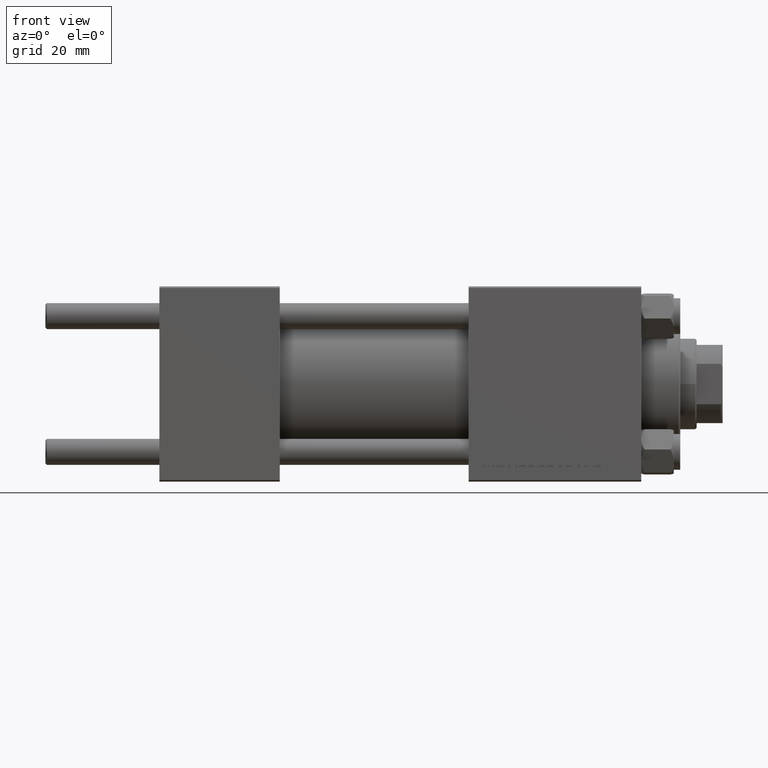
[diagram: clean part render]
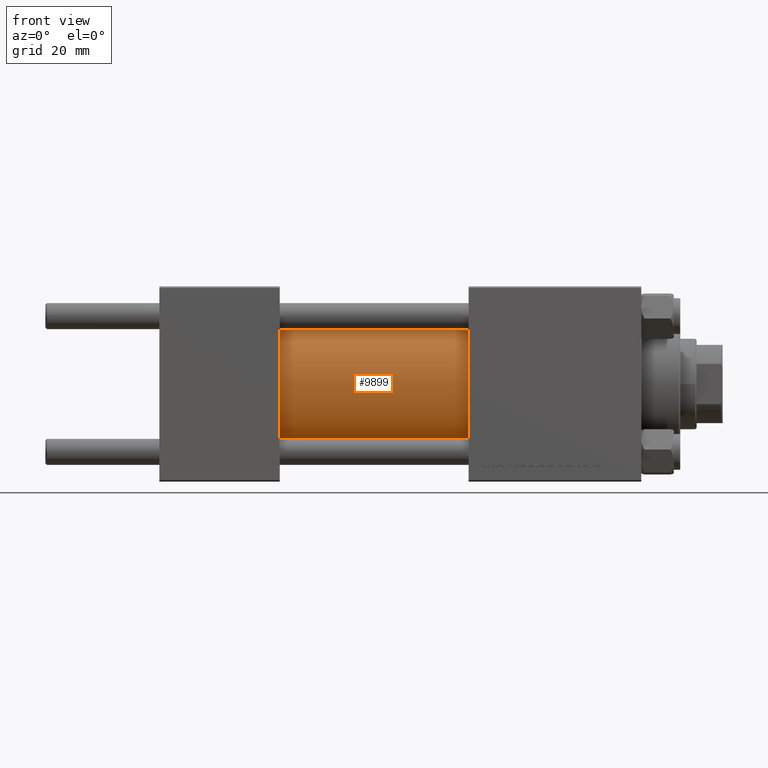
[diagram: same view with one face highlighted and labeled with its STEP entity id]
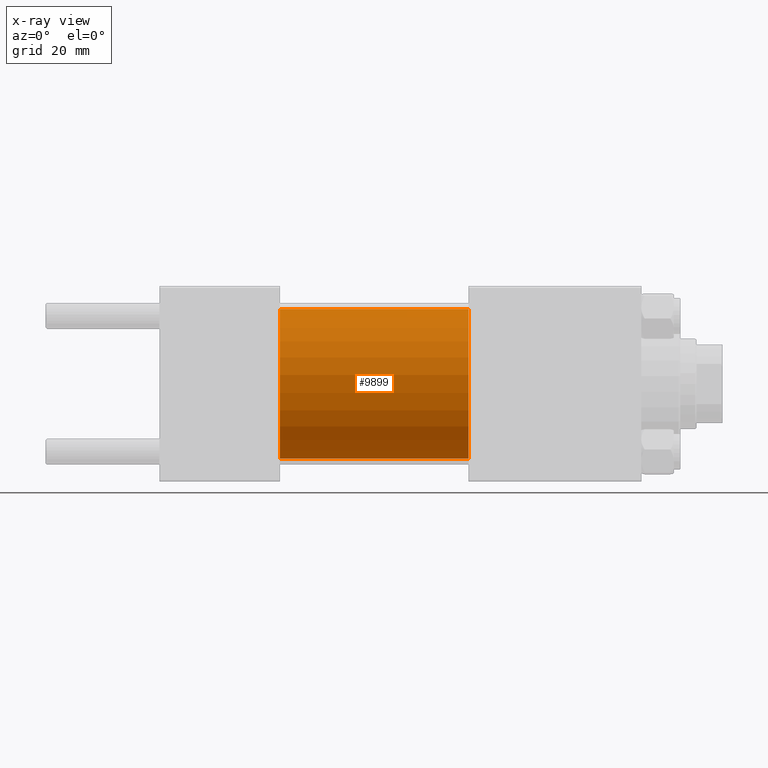
[diagram: x-ray of the same camera — body ghosted, the highlighted face saturated]
A machine part, front view. The second image highlights one B-rep face of the part: STEP entity #9899.
The next image is the same camera in x-ray: the body ghosted, the highlighted face saturated — about 0% of this face is hidden behind the body in this view.
In plain terms, the highlighted cylindrical surface (partial cylindrical patch) has radius 23 mm, axis along (-1, -0, -0).
Its self-contained STEP definition (entity closure, byte-faithful):
#1050 = LINE ( 'NONE', #4615, #10610 ) ;
#1324 = DIRECTION ( 'NONE',  ( 0.000000000000000000, 0.000000000000000000, 1.000000000000000000 ) ) ;
#2350 = DIRECTION ( 'NONE',  ( 0.000000000000000000, 0.000000000000000000, -1.000000000000000000 ) ) ;
#2922 = CIRCLE ( 'NONE', #44176, 23.00000000000000000 ) ;
#3575 = VERTEX_POINT ( 'NONE', #37879 ) ;
#4615 = CARTESIAN_POINT ( 'NONE',  ( 95.00000000000000000, 0.000000000000000000, 23.00000000000000000 ) ) ;
#7460 = CARTESIAN_POINT ( 'NONE',  ( 37.00000000000000000, 0.000000000000000000, 0.000000000000000000 ) ) ;
#9718 = EDGE_CURVE ( 'NONE', #40997, #33920, #2922, .T. ) ;
#9899 = ADVANCED_FACE ( 'NONE', ( #24388 ), #36041, .T. ) ;
#9957 = CARTESIAN_POINT ( 'NONE',  ( 95.00000000000000000, 0.000000000000000000, 0.000000000000000000 ) ) ;
#10007 = CARTESIAN_POINT ( 'NONE',  ( 37.00000000000000000, 2.816687638038911957E-15, -23.00000000000000000 ) ) ;
#10056 = AXIS2_PLACEMENT_3D ( 'NONE', #9957, #17809, #2350 ) ;
#10258 = CARTESIAN_POINT ( 'NONE',  ( 37.00000000000000000, 0.000000000000000000, 23.00000000000000000 ) ) ;
#10610 = VECTOR ( 'NONE', #24373, 1000.000000000000000 ) ;
#11762 = DIRECTION ( 'NONE',  ( 0.000000000000000000, 0.000000000000000000, 1.000000000000000000 ) ) ;
#11862 = ORIENTED_EDGE ( 'NONE', *, *, #9718, .T. ) ;
#12792 = DIRECTION ( 'NONE',  ( -1.000000000000000000, -0.000000000000000000, -0.000000000000000000 ) ) ;
#13543 = CARTESIAN_POINT ( 'NONE',  ( 95.00000000000000000, 2.816687638038911957E-15, -23.00000000000000000 ) ) ;
#14519 = EDGE_LOOP ( 'NONE', ( #47446, #43696, #17570, #11862 ) ) ;
#17570 = ORIENTED_EDGE ( 'NONE', *, *, #25869, .T. ) ;
#17809 = DIRECTION ( 'NONE',  ( 1.000000000000000000, 0.000000000000000000, 0.000000000000000000 ) ) ;
#24373 = DIRECTION ( 'NONE',  ( -1.000000000000000000, -0.000000000000000000, -0.000000000000000000 ) ) ;
#24388 = FACE_OUTER_BOUND ( 'NONE', #14519, .T. ) ;
#24935 = LINE ( 'NONE', #13543, #31651 ) ;
#25308 = CIRCLE ( 'NONE', #10056, 23.00000000000000000 ) ;
#25869 = EDGE_CURVE ( 'NONE', #3575, #40997, #1050, .T. ) ;
#26452 = EDGE_CURVE ( 'NONE', #29736, #33920, #24935, .T. ) ;
#29736 = VERTEX_POINT ( 'NONE', #40966 ) ;
#31651 = VECTOR ( 'NONE', #12792, 1000.000000000000000 ) ;
#33858 = EDGE_CURVE ( 'NONE', #3575, #29736, #25308, .T. ) ;
#33920 = VERTEX_POINT ( 'NONE', #10007 ) ;
#36041 = CYLINDRICAL_SURFACE ( 'NONE', #37736, 23.00000000000000000 ) ;
#37736 = AXIS2_PLACEMENT_3D ( 'NONE', #43387, #39592, #1324 ) ;
#37879 = CARTESIAN_POINT ( 'NONE',  ( 95.00000000000000000, 0.000000000000000000, 23.00000000000000000 ) ) ;
#39592 = DIRECTION ( 'NONE',  ( -1.000000000000000000, -0.000000000000000000, -0.000000000000000000 ) ) ;
#40966 = CARTESIAN_POINT ( 'NONE',  ( 95.00000000000000000, 2.816687638038911957E-15, -23.00000000000000000 ) ) ;
#40997 = VERTEX_POINT ( 'NONE', #10258 ) ;
#43387 = CARTESIAN_POINT ( 'NONE',  ( 95.00000000000000000, 0.000000000000000000, 0.000000000000000000 ) ) ;
#43696 = ORIENTED_EDGE ( 'NONE', *, *, #33858, .F. ) ;
#44176 = AXIS2_PLACEMENT_3D ( 'NONE', #7460, #45686, #11762 ) ;
#45686 = DIRECTION ( 'NONE',  ( 1.000000000000000000, -0.000000000000000000, 0.000000000000000000 ) ) ;
#47446 = ORIENTED_EDGE ( 'NONE', *, *, #26452, .F. ) ;